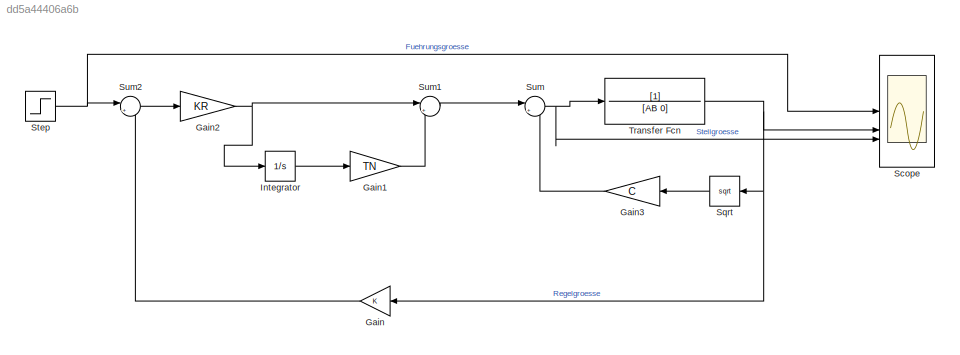
MODEL slx_dd5a44406a6b
KIND model
CONFIG AbsTol = auto
CONFIG EnableMultiTasking = off
CONFIG FixedStep = auto
CONFIG MaxStep = auto
CONFIG MinStep = auto
CONFIG RelTol = 1e-3
CONFIG SampleTimeConstraint = Unconstrained
CONFIG SolverName = VariableStepAuto
CONFIG StartTime = 0.0
CONFIG StopTime = 10.0
BLOCK [Gain] Gain
  NameLocation = top
BLOCK [Gain] Gain1
  Gain = TN
BLOCK [Gain] Gain2
  Gain = KR
BLOCK [Gain] Gain3
  Gain = C
  NameLocation = top
BLOCK [Integrator] Integrator
BLOCK [Scope] Scope
  Floating = off
  NumInputPorts = 3
  ScopeSpecificationString = Simulink.scopes.TimeScopeBlockCfg('CurrentConfiguration', extmgr.ConfigurationSet(extmgr.Configuration('Core','General UI',true),extmgr.Configuration('Core','Source UI',true),extmgr.Configuration('Sources','WiredSimulink',true,'DataLogging',true,'DataLoggingSaveFormat','StructureWithTime'),extmgr.Configuration('Visuals','Time Domain',true,'SerializedDisplays',{struct('MinYLimReal','-0.01362','MaxY...<+1471ch>
BLOCK [Sqrt] Sqrt
  NameLocation = top
BLOCK [Step] Step
  After = 0
  Before = 0.1
  SampleTime = 0
  Time = 40
BLOCK [Sum] Sum
  Inputs = |+-
BLOCK [Sum] Sum1
  Inputs = |++
BLOCK [Sum] Sum2
  Inputs = |+-
BLOCK [TransferFcn] Transfer Fcn
  Denominator = [AB 0]
LINE Gain1:1 -> Sum1:2
NET Gain2:1 -> Integrator:1, Sum1:1
LINE Gain3:1 -> Sum:2
LINE Gain:1 -> Sum2:2
LINE Integrator:1 -> Gain1:1
LINE Sqrt:1 -> Gain3:1
NET Step:1 -> Scope:1, Sum2:1
LINE Sum1:1 -> Sum:1
LINE Sum2:1 -> Gain2:1
NET Sum:1 -> Scope:3, Transfer Fcn:1
NET Transfer Fcn:1 -> Gain:1, Scope:2, Sqrt:1
note: NET lines group one-source signal fan-out (src -> all destinations, sorted); 1:1 wires keep LINE
